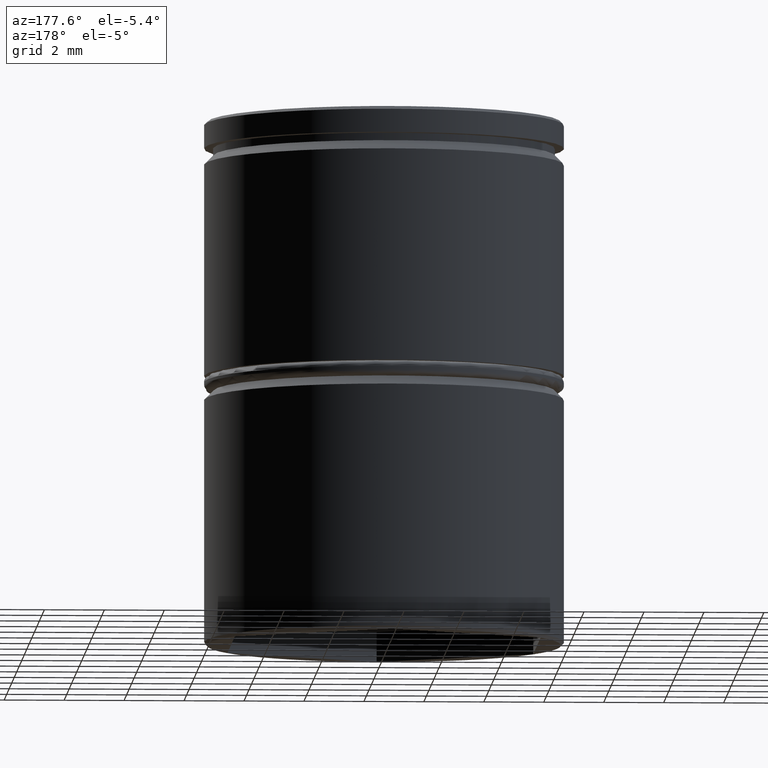
[diagram: clean part render]
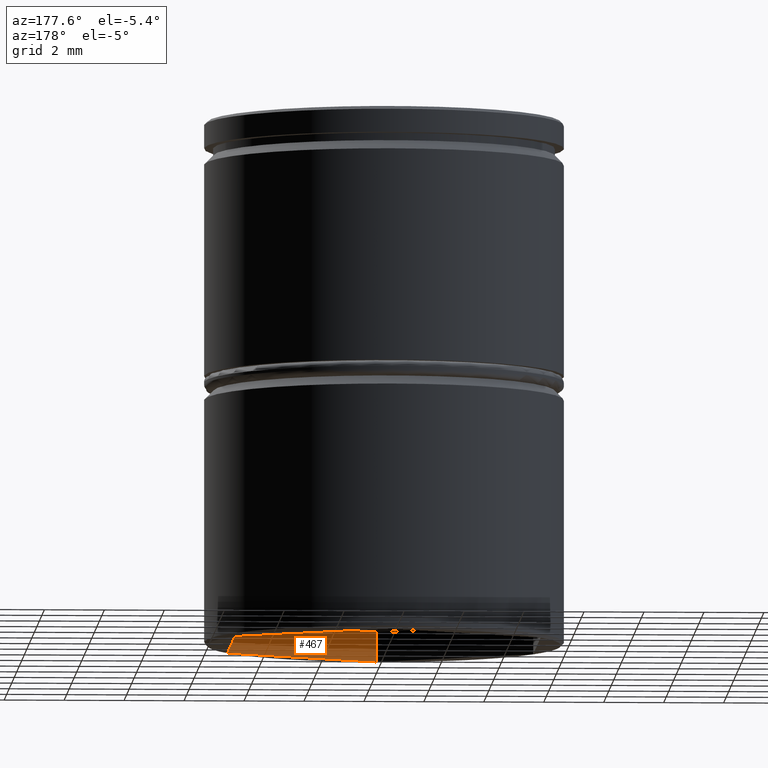
[diagram: same view with one face highlighted and labeled with its STEP entity id]
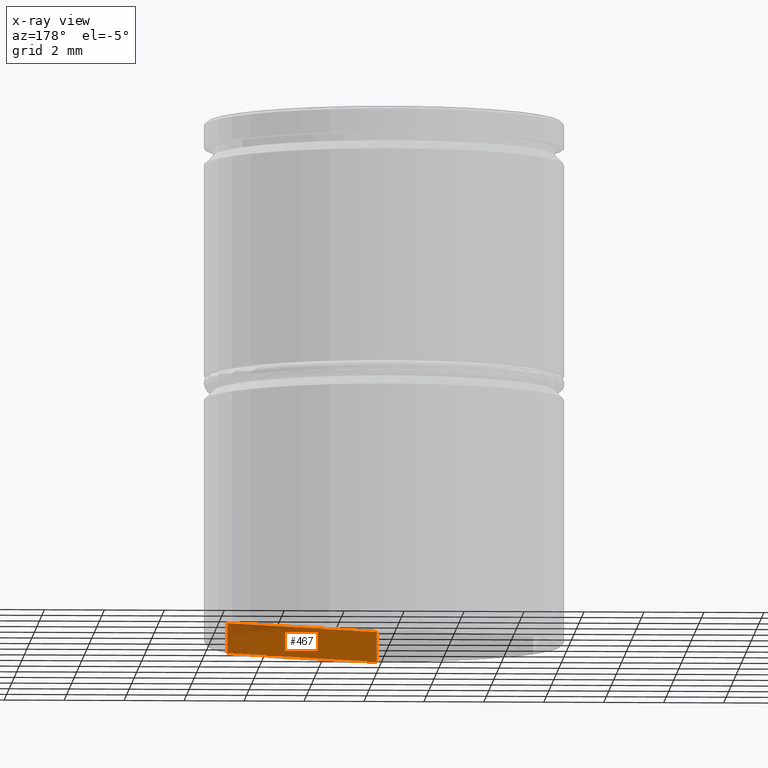
[diagram: x-ray of the same camera — body ghosted, the highlighted face saturated]
A machine part, auxiliary view. The second image highlights one B-rep face of the part: STEP entity #467.
The next image is the same camera in x-ray: the body ghosted, the highlighted face saturated — about 20% of this face is hidden behind the body in this view.
In plain terms, the highlighted planar face has unit normal (0.5, -0.866, 0).
Its self-contained STEP definition (entity closure, byte-faithful):
#4 = VECTOR ( 'NONE', #169, 1000.000000000000114 ) ;
#10 = CARTESIAN_POINT ( 'NONE',  ( 5.099999999999999645, -2.944486372867090918, -17.50000000000000000 ) ) ;
#20 = AXIS2_PLACEMENT_3D ( 'NONE', #185, #951, #887 ) ;
#21 = CARTESIAN_POINT ( 'NONE',  ( 5.099999999999999645, -2.944486372867090918, -16.50000000000000000 ) ) ;
#99 = LINE ( 'NONE', #10, #4 ) ;
#112 = VECTOR ( 'NONE', #929, 1000.000000000000000 ) ;
#117 = EDGE_LOOP ( 'NONE', ( #207, #655, #532, #397 ) ) ;
#139 = VERTEX_POINT ( 'NONE', #364 ) ;
#169 = DIRECTION ( 'NONE',  ( -0.8660254037844387076, -0.4999999999999998890, 0.000000000000000000 ) ) ;
#185 = CARTESIAN_POINT ( 'NONE',  ( 5.099999999999999645, -2.944486372867090918, -16.50000000000000000 ) ) ;
#190 = LINE ( 'NONE', #900, #967 ) ;
#192 = CARTESIAN_POINT ( 'NONE',  ( 5.099999999999999645, -2.944486372867090918, -17.50000000000000000 ) ) ;
#207 = ORIENTED_EDGE ( 'NONE', *, *, #922, .T. ) ;
#234 = LINE ( 'NONE', #859, #112 ) ;
#253 = EDGE_CURVE ( 'NONE', #139, #433, #234, .T. ) ;
#265 = FACE_OUTER_BOUND ( 'NONE', #117, .T. ) ;
#336 = VERTEX_POINT ( 'NONE', #711 ) ;
#344 = DIRECTION ( 'NONE',  ( -0.000000000000000000, -0.000000000000000000, -1.000000000000000000 ) ) ;
#350 = LINE ( 'NONE', #21, #706 ) ;
#354 = DIRECTION ( 'NONE',  ( -0.8660254037844387076, -0.4999999999999998890, 0.000000000000000000 ) ) ;
#364 = CARTESIAN_POINT ( 'NONE',  ( 5.099999999999999645, -2.944486372867090918, -16.50000000000000000 ) ) ;
#397 = ORIENTED_EDGE ( 'NONE', *, *, #253, .T. ) ;
#433 = VERTEX_POINT ( 'NONE', #192 ) ;
#467 = ADVANCED_FACE ( 'NONE', ( #265 ), #961, .F. ) ;
#532 = ORIENTED_EDGE ( 'NONE', *, *, #949, .F. ) ;
#655 = ORIENTED_EDGE ( 'NONE', *, *, #955, .F. ) ;
#706 = VECTOR ( 'NONE', #354, 1000.000000000000114 ) ;
#711 = CARTESIAN_POINT ( 'NONE',  ( -8.646952822150503169E-16, -5.888972745734181835, -17.50000000000000000 ) ) ;
#793 = CARTESIAN_POINT ( 'NONE',  ( -8.646952822150503169E-16, -5.888972745734181835, -16.50000000000000000 ) ) ;
#829 = VERTEX_POINT ( 'NONE', #793 ) ;
#859 = CARTESIAN_POINT ( 'NONE',  ( 5.099999999999999645, -2.944486372867090918, -16.50000000000000000 ) ) ;
#887 = DIRECTION ( 'NONE',  ( 0.8660254037844387076, 0.4999999999999998335, 0.000000000000000000 ) ) ;
#900 = CARTESIAN_POINT ( 'NONE',  ( -8.646952822150503169E-16, -5.888972745734181835, -16.50000000000000000 ) ) ;
#922 = EDGE_CURVE ( 'NONE', #433, #336, #99, .T. ) ;
#929 = DIRECTION ( 'NONE',  ( -0.000000000000000000, -0.000000000000000000, -1.000000000000000000 ) ) ;
#949 = EDGE_CURVE ( 'NONE', #139, #829, #350, .T. ) ;
#951 = DIRECTION ( 'NONE',  ( 0.4999999999999998335, -0.8660254037844387076, 0.000000000000000000 ) ) ;
#955 = EDGE_CURVE ( 'NONE', #829, #336, #190, .T. ) ;
#961 = PLANE ( 'NONE',  #20 ) ;
#967 = VECTOR ( 'NONE', #344, 1000.000000000000000 ) ;